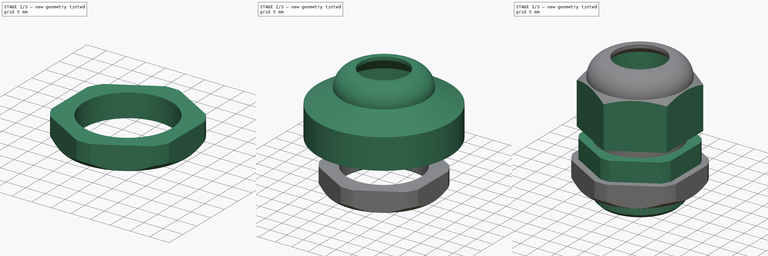
[diagram: build sequence overview — one tinted view per stage of 3, left to right]
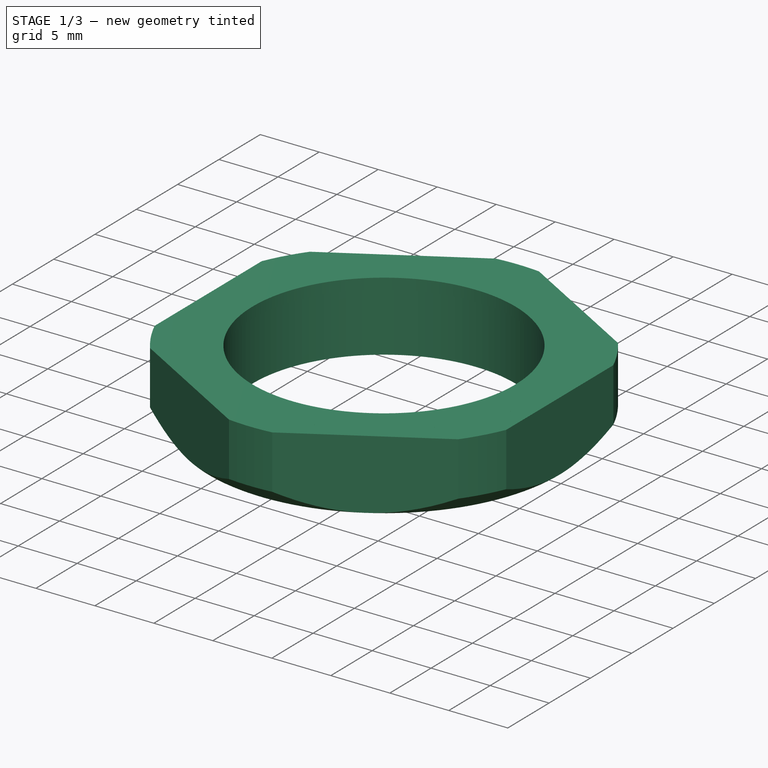
[diagram: stage 1 of 3 — iso view after this stage's code; geometry added in this stage tinted green]
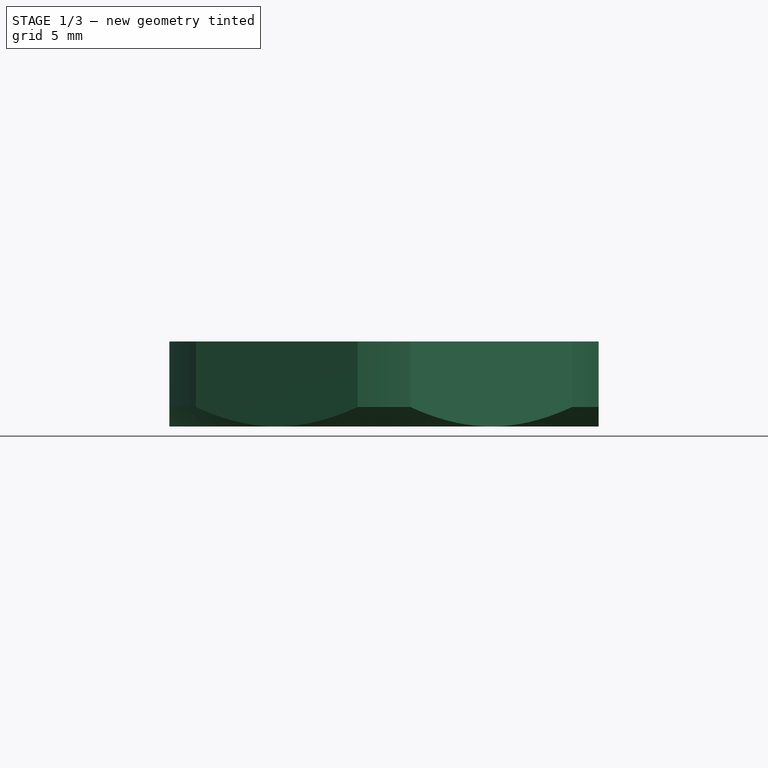
[diagram: stage 1 of 3 — front view after this stage's code; geometry added in this stage tinted green]
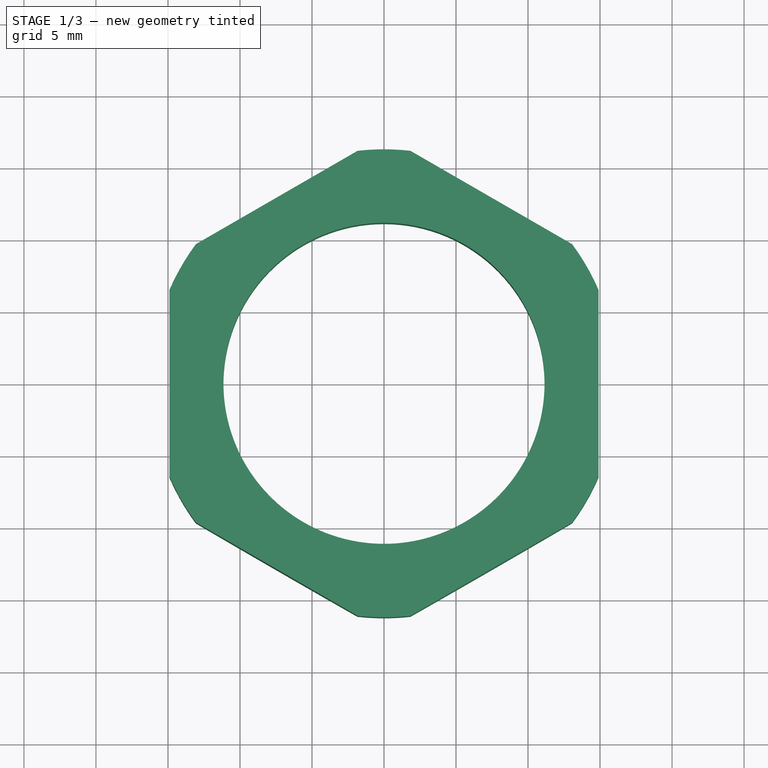
[diagram: stage 1 of 3 — top view after this stage's code; geometry added in this stage tinted green]
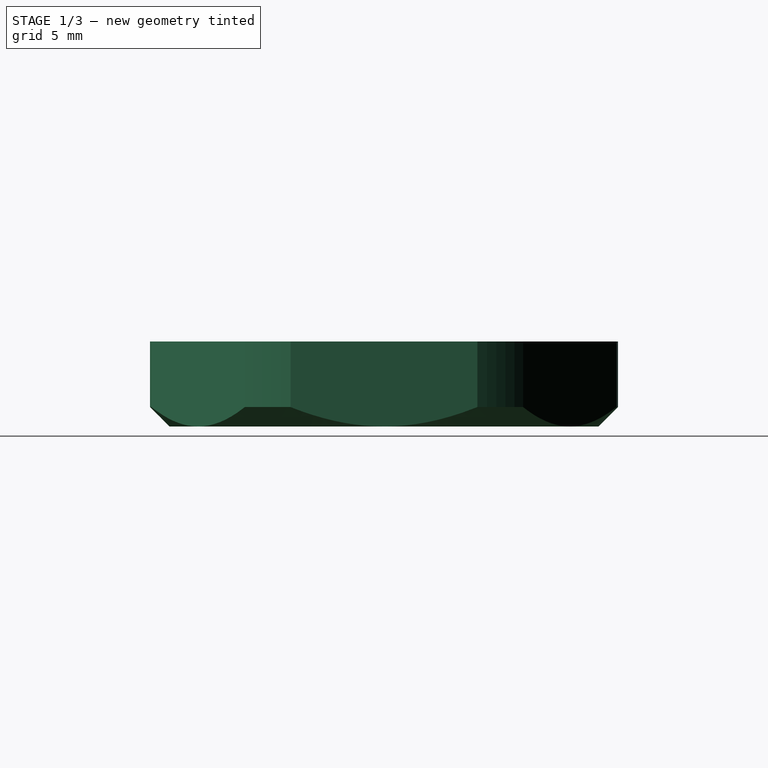
[diagram: stage 1 of 3 — right view after this stage's code; geometry added in this stage tinted green]
FCSTD DOCUMENT  (FreeCAD 0.20R29410 (Git))
Label: PG16 Gland
License: All rights reserved
LicenseURL: http://en.wikipedia.org/wiki/All_rights_reserved
objects: Sketcher::SketchObject×7, PartDesign::Body×4, PartDesign::Revolution×3, PartDesign::Pocket×3, PartDesign::Chamfer×1, PartDesign::Pad×1
note: 27 computed .brp shape members not serialized (recipe doc carries the construction recipe); baked Part::Feature solids carry a one-line shape summary decoded from their .brp

FEATURE [PartDesign::Body] Body001
  Group = -> [Sketch002,Revolution001,Sketch003,Pocket001]
  Origin = -> Origin001
  Placement = pos=(0,0,2) rot=(0,0,1;0rad)
  Tip = -> Pocket001
FEATURE [Sketcher::SketchObject] Sketch004
  FullyConstrained = true
  MapMode = 5
  Placement = pos=(0,0,0) rot=(0.57735,0.57735,0.57735;2.0944rad)
  Support = -> [YZ_Plane002]
  sketch-geometry (5):
    g0: LineSegment StartX=11.15 StartY=0 StartZ=0 EndX=11.15 EndY=-5.9 EndZ=0
    g1: LineSegment StartX=11.15 StartY=-5.9 StartZ=0 EndX=14.9 EndY=-5.9 EndZ=0
    g2: LineSegment StartX=14.9 StartY=-5.9 StartZ=0 EndX=16.25 EndY=-4.55 EndZ=0
    g3: LineSegment StartX=16.25 StartY=-4.55 StartZ=0 EndX=16.25 EndY=0 EndZ=0
    g4: LineSegment StartX=16.25 StartY=0 StartZ=0 EndX=11.15 EndY=0 EndZ=0
  constraints (15):
    c: Vertical(g0)
    c: Coincident(g2,g3)
    c: Vertical(g3)
    c: Coincident(g3,g4)
    c: Coincident(g4,g0)
    c: Horizontal(g4)
    c: DistanceY(g0,g0) = 5.9
    c: DistanceX(g-1,g0) = 11.15
    c: DistanceX(g-1,g3) = 16.25
    c: Angle(g2,g-1) = 2.35619
    c: DistanceX(g-1,g1) = 14.9
    c: Coincident(g0,g1)
    c: Coincident(g1,g2)
    c: Horizontal(g1)
    c: PointOnObject(g3,g-1)
FEATURE [PartDesign::Revolution] Revolution002
  Angle = 360
  Axis = (-2e-16,3e-16,1)
  Base = (0,0,0)
  Placement = pos=(0,0,0) rot=(0.57735,0.57735,0.57735;2.0944rad)
  Profile = -> Sketch004
  ReferenceAxis = -> Sketch004 [V_Axis]
  Reversed = true
FEATURE [Sketcher::SketchObject] Sketch005
  FullyConstrained = false
  MapMode = 5
  Placement = pos=(3.3e-15,-2.3e-15,-5.9) rot=(0.707107,0.707107,0;3.14159rad)
  Support = -> [Revolution002]
  sketch-geometry (8):
    g0: LineSegment StartX=17.205 StartY=0 StartZ=0 EndX=8.60252 EndY=14.9 EndZ=0
    g1: LineSegment StartX=8.60252 StartY=14.9 StartZ=0 EndX=-8.60252 EndY=14.9 EndZ=0
    g2: LineSegment StartX=-8.60252 StartY=14.9 StartZ=0 EndX=-17.205 EndY=1.0587e-12 EndZ=0
    g3: LineSegment StartX=-17.205 StartY=1.0587e-12 StartZ=0 EndX=-8.60252 EndY=-14.9 EndZ=0
    g4: LineSegment StartX=-8.60252 StartY=-14.9 StartZ=0 EndX=8.60252 EndY=-14.9 EndZ=0
    g5: LineSegment StartX=8.60252 StartY=-14.9 StartZ=0 EndX=17.205 EndY=0 EndZ=0
    g6: Circle CenterX=0 CenterY=0 CenterZ=0 NormalX=0 NormalY=0 NormalZ=1 AngleXU=0 Radius=17.205
    g7: Circle CenterX=0 CenterY=0 CenterZ=0 NormalX=0 NormalY=0 NormalZ=1 AngleXU=0 Radius=18.7292
  constraints (17):
    c: Coincident(g0,g1)
    c: Coincident(g1,g2)
    c: Coincident(g2,g3)
    c: Coincident(g3,g4)
    c: Coincident(g4,g5)
    c: Coincident(g5,g0)
    c: Equal(g0, g1-g5) x5
    c: PointOnObject(g0,g6)
    c: PointOnObject(g1,g6)
    c: PointOnObject(g2,g6)
    c: PointOnObject(g3,g6)
    c: PointOnObject(g4,g6)
    c: PointOnObject(g5,g6)
    c: Coincident(g6,g-1)
    c: PointOnObject(g5,g-1)
    c: DistanceY(g4,g0) = 29.8
    c: Coincident(g7,g6)
FEATURE [PartDesign::Pocket] Pocket002
  BaseFeature = -> Revolution002
  Direction = (-6e-16,4e-16,1)
  Length = 5
  Length2 = 5
  Placement = pos=(0,0,0) rot=(0.57735,0.57735,0.57735;2.0944rad)
  Profile = -> Sketch005
  ReferenceAxis = -> Sketch005 [N_Axis]
  Type = 1
FEATURE [PartDesign::Body] Body002
  Group = -> [Sketch004,Revolution002,Sketch005,Pocket002,Chamfer]
  Origin = -> Origin002
  Placement = pos=(0,0,-2.9) rot=(0,0,1;0rad)
  Tip = -> Chamfer
FEATURE [Sketcher::SketchObject] Sketch006
  FullyConstrained = true
  MapMode = 5
  Support = -> [XY_Plane003]
  sketch-geometry (2):
    g0: Circle CenterX=0 CenterY=0 CenterZ=0 NormalX=0 NormalY=0 NormalZ=1 AngleXU=0 Radius=13.9
    g1: Circle CenterX=0 CenterY=0 CenterZ=0 NormalX=0 NormalY=0 NormalZ=1 AngleXU=0 Radius=11.15
  constraints (4):
    c: Coincident(g0,g-1)
    c: Diameter(g0) = 27.8
    c: Coincident(g1,g0)
    c: Diameter(g1) = 22.3
FEATURE [PartDesign::Pad] Pad
  Direction = (0,0,1)
  Length = 0.9
  Length2 = 10
  Profile = -> Sketch006
  ReferenceAxis = -> Sketch006 [N_Axis]
  Reversed = true
  Type = 0
FEATURE [PartDesign::Body] Body003
  Group = -> [Sketch006,Pad]
  Origin = -> Origin003
  Tip = -> Pad
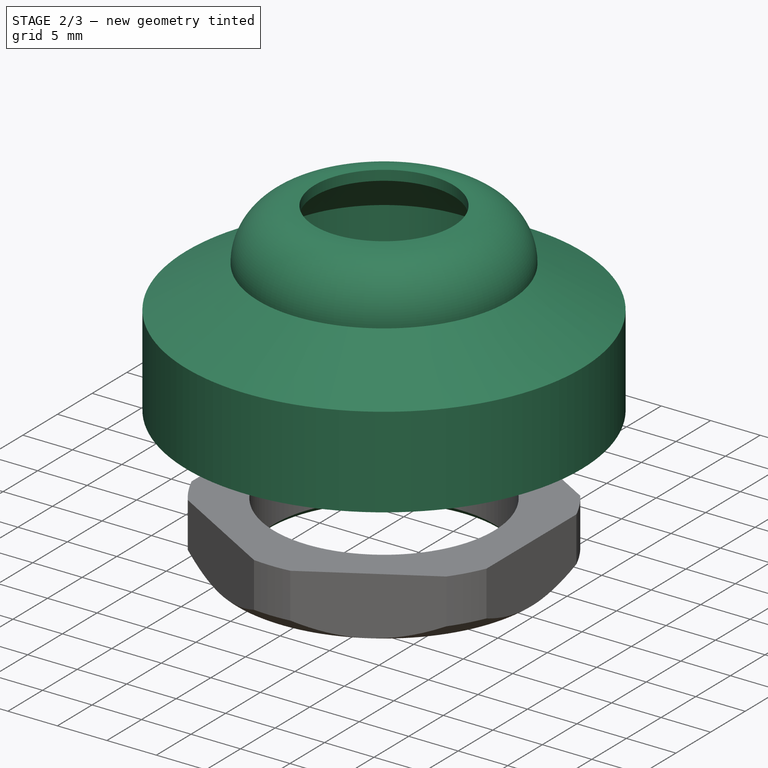
[diagram: stage 2 of 3 — iso view after this stage's code; geometry added in this stage tinted green]
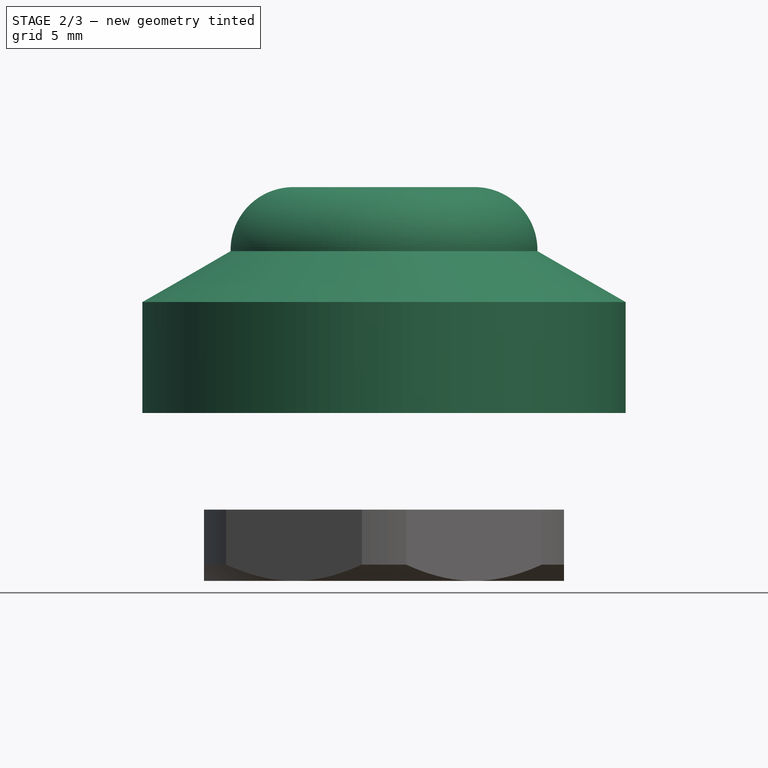
[diagram: stage 2 of 3 — front view after this stage's code; geometry added in this stage tinted green]
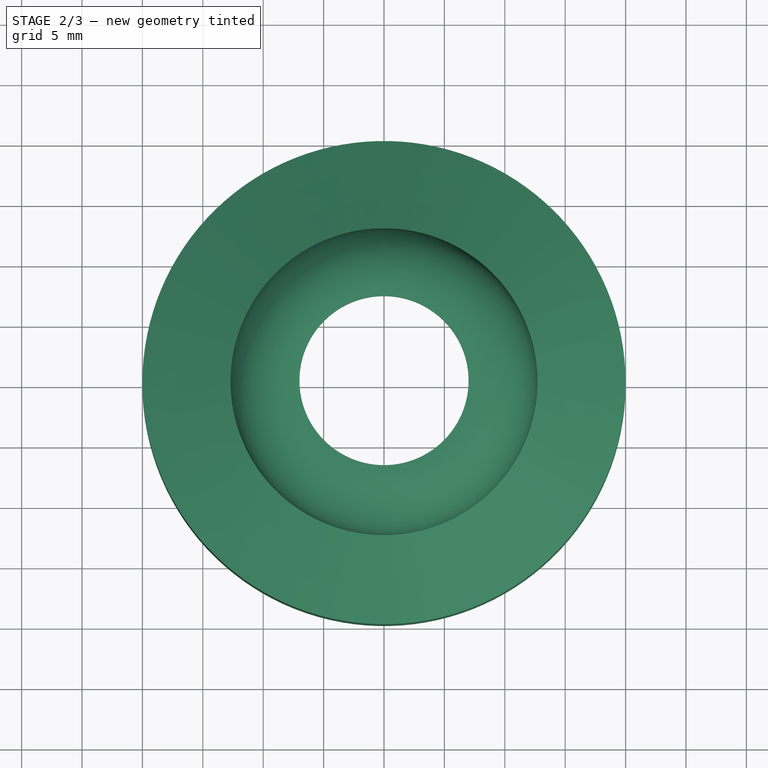
[diagram: stage 2 of 3 — top view after this stage's code; geometry added in this stage tinted green]
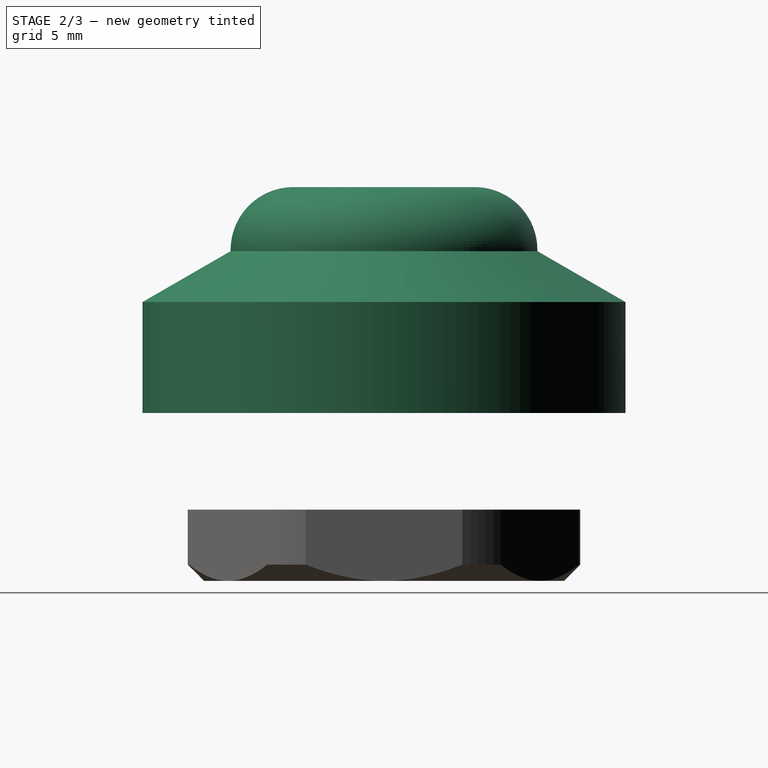
[diagram: stage 2 of 3 — right view after this stage's code; geometry added in this stage tinted green]
FEATURE [PartDesign::Body] Body
  Group = -> [Sketch,Revolution,Sketch001,Pocket]
  Origin = -> Origin
  Tip = -> Pocket
FEATURE [Sketcher::SketchObject] Sketch002
  FullyConstrained = true
  MapMode = 5
  Placement = pos=(0,0,0) rot=(1,0,0;1.5708rad)
  Support = -> [XZ_Plane001]
  sketch-geometry (9):
    g0: LineSegment StartX=11.15 StartY=8 StartZ=0 EndX=20 EndY=8 EndZ=0
    g1: LineSegment StartX=20 StartY=8 StartZ=0 EndX=20 EndY=17.1853 EndZ=0
    g2: LineSegment StartX=20 StartY=17.1853 StartZ=0 EndX=12.7 EndY=21.4 EndZ=0
    g3: LineSegment StartX=11.15 StartY=8 StartZ=0 EndX=11.15 EndY=21.55 EndZ=0
    g4: LineSegment StartX=11.15 StartY=21.55 StartZ=0 EndX=7 EndY=25.7 EndZ=0
    g5: LineSegment StartX=7 StartY=25.7 StartZ=0 EndX=7 EndY=26.7 EndZ=0
    g6: LineSegment StartX=7 StartY=26.7 StartZ=0 EndX=7.5 EndY=26.7 EndZ=0
    g7: LineSegment StartX=12.7 StartY=21.4 StartZ=0 EndX=12.7 EndY=21.5 EndZ=0
    g8: ArcOfCircle CenterX=7.5 CenterY=21.5 CenterZ=0 NormalX=0 NormalY=0 NormalZ=1 AngleXU=0 Radius=5.2 StartAngle=3e-16 EndAngle=1.5708
  constraints (26):
    c: Horizontal(g0)
    c: Coincident(g0,g1)
    c: Vertical(g1)
    c: Coincident(g1,g2)
    c: Coincident(g0,g3)
    c: Vertical(g3)
    c: Coincident(g3,g4)
    c: Coincident(g4,g5)
    c: Coincident(g5,g6)
    c: Horizontal(g6)
    c: Vertical(g5)
    c: Angle(g4,g3) = 2.35619
    c: Coincident(g7,g2)
    c: Vertical(g7)
    c: Tangent(g6,g8) = 1.5708
    c: Tangent(g7,g8) = -1.5708
    c: DistanceY(g-1,g0) = 8
    c: DistanceX(g-1,g7) = 12.7
    c: DistanceX(g-1,g0) = 20
    c: Angle(g2,g1) = 2.0944
    c: DistanceX(g-1,g0) = 11.15
    c: DistanceY(g0,g5) = 18.7
    c: DistanceY(g0,g2) = 13.4
    c: DistanceX(g6,g6) = 0.5
    c: DistanceX(g-1,g5) = 7
    c: DistanceY(g5,g5) = 1
FEATURE [PartDesign::Revolution] Revolution001
  AllowMultiFace = false
  Angle = 360
  Axis = (0,-2e-16,1)
  Base = (0,0,0)
  Placement = pos=(0,0,0) rot=(1,0,0;1.5708rad)
  Profile = -> Sketch002
  ReferenceAxis = -> Sketch002 [V_Axis]
  Reversed = true
FEATURE [PartDesign::Chamfer] Chamfer
  Angle = 45
  Base = -> Pocket002 [Edge2,Edge1]
  BaseFeature = -> Pocket002
  ChamferType = 0
  FlipDirection = false
  Placement = pos=(0,0,0) rot=(0.57735,0.57735,0.57735;2.0944rad)
  Size = 0.5
  Size2 = 1
  SupportTransform = false
  UseAllEdges = false
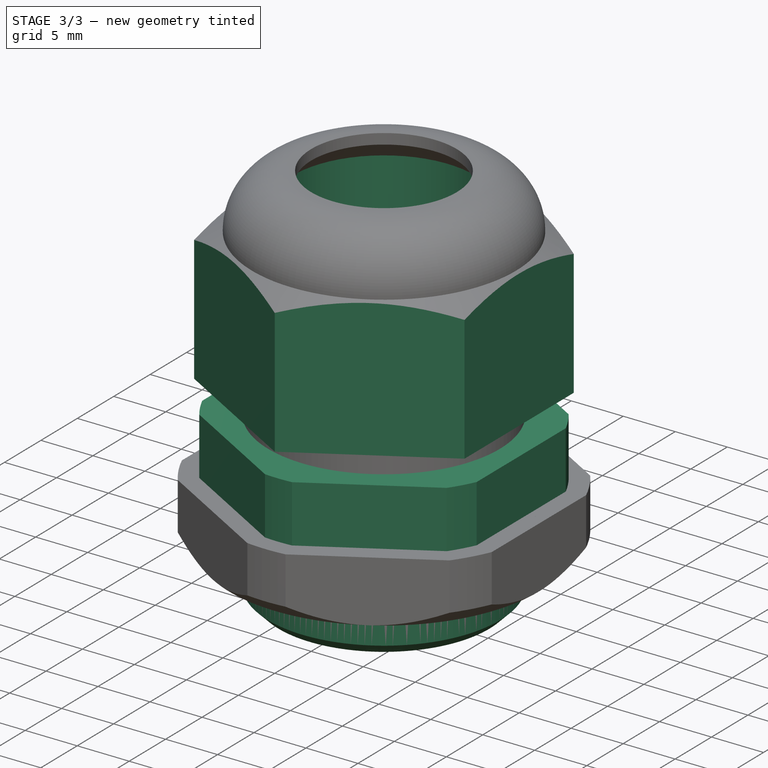
[diagram: stage 3 of 3 — iso view after this stage's code; geometry added in this stage tinted green]
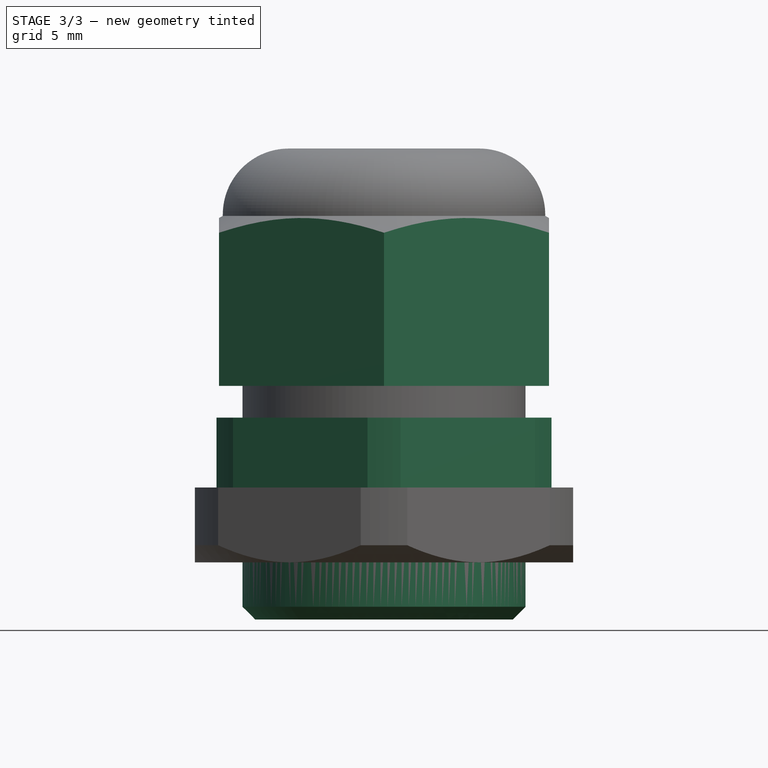
[diagram: stage 3 of 3 — front view after this stage's code; geometry added in this stage tinted green]
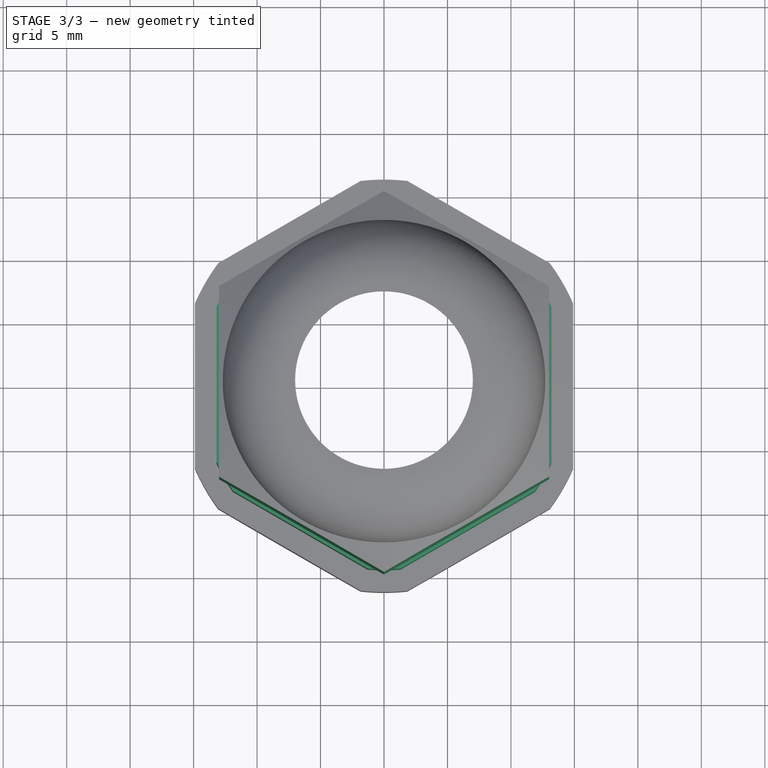
[diagram: stage 3 of 3 — top view after this stage's code; geometry added in this stage tinted green]
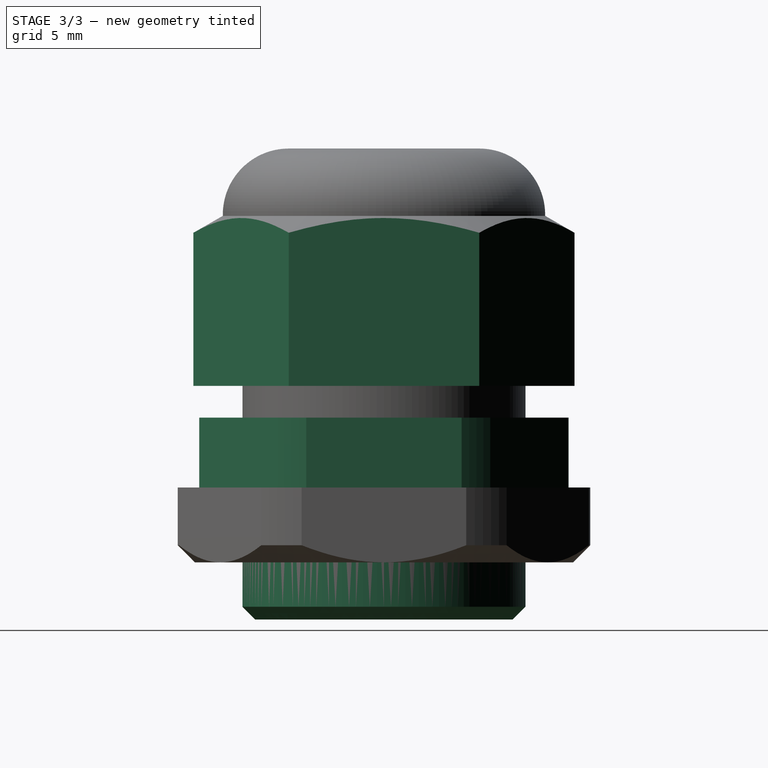
[diagram: stage 3 of 3 — right view after this stage's code; geometry added in this stage tinted green]
FEATURE [Sketcher::SketchObject] Sketch
  FullyConstrained = true
  MapMode = 5
  Placement = pos=(0,0,0) rot=(1,0,0;1.5708rad)
  Support = -> [XZ_Plane]
  sketch-geometry (10):
    g0: LineSegment StartX=8.75 StartY=-10.4 StartZ=0 EndX=8.75 EndY=25.3 EndZ=0
    g1: LineSegment StartX=11.15 StartY=19.3 StartZ=0 EndX=11.15 EndY=5.5 EndZ=0
    g2: LineSegment StartX=11.15 StartY=5.5 StartZ=0 EndX=14.55 EndY=5.5 EndZ=0
    g3: LineSegment StartX=14.55 StartY=5.5 StartZ=0 EndX=14.55 EndY=0 EndZ=0
    g4: LineSegment StartX=14.55 StartY=0 StartZ=0 EndX=11.15 EndY=0 EndZ=0
    g5: LineSegment StartX=11.15 StartY=0 StartZ=0 EndX=11.15 EndY=-9.4 EndZ=0
    g6: LineSegment StartX=11.15 StartY=-9.4 StartZ=0 EndX=10.15 EndY=-10.4 EndZ=0
    g7: LineSegment StartX=10.15 StartY=-10.4 StartZ=0 EndX=8.75 EndY=-10.4 EndZ=0
    g8: LineSegment StartX=11.15 StartY=19.3 StartZ=0 EndX=9.75 EndY=25.3 EndZ=0
    g9: LineSegment StartX=9.75 StartY=25.3 StartZ=0 EndX=8.75 EndY=25.3 EndZ=0
  constraints (30):
    c: Vertical(g0)
    c: Vertical(g1)
    c: Coincident(g1,g2)
    c: Horizontal(g2)
    c: Coincident(g2,g3)
    c: Vertical(g3)
    c: Coincident(g3,g4)
    c: Horizontal(g4)
    c: Coincident(g4,g5)
    c: Vertical(g5)
    c: Coincident(g5,g6)
    c: Coincident(g6,g7)
    c: Coincident(g7,g0)
    c: Horizontal(g7)
    c: Coincident(g8,g9)
    c: Coincident(g9,g0)
    c: Horizontal(g9)
    c: DistanceY(g0,g-1) = 10.4
    c: DistanceY(g6,g5) = 1
    c: Angle(g6,g7) = 2.35619
    c: DistanceX(g-1,g5) = 11.15
    c: DistanceX(g-1,g0) = 8.75
    c: PointOnObject(g4,g-1)
    c: DistanceY(g3,g3) = 5.5
    c: DistanceX(g-1,g3) = 14.55
    c: DistanceX(g-1,g1) = 11.15
    c: Coincident(g8,g1)
    c: DistanceY(g1,g8) = 6
    c: DistanceX(g0,g8) = 1
    c: DistanceY(g2,g8) = 19.8
FEATURE [PartDesign::Revolution] Revolution
  AllowMultiFace = false
  Angle = 360
  Axis = (0,-2e-16,1)
  Base = (0,0,0)
  Placement = pos=(0,0,0) rot=(1,0,0;1.5708rad)
  Profile = -> Sketch
  ReferenceAxis = -> Sketch [V_Axis]
  Reversed = true
FEATURE [Sketcher::SketchObject] Sketch001
  FullyConstrained = true
  MapMode = 5
  Placement = pos=(0,-1.2e-15,5.5) rot=(0,0,1;3.14159rad)
  Support = -> [Revolution]
  sketch-geometry (8):
    g0: LineSegment StartX=0 StartY=15.242 StartZ=0 EndX=-13.2 EndY=7.62102 EndZ=0
    g1: LineSegment StartX=-13.2 StartY=7.62102 StartZ=0 EndX=-13.2 EndY=-7.62102 EndZ=0
    g2: LineSegment StartX=-13.2 StartY=-7.62102 StartZ=0 EndX=-4.97e-14 EndY=-15.242 EndZ=0
    g3: LineSegment StartX=-4.97e-14 StartY=-15.242 StartZ=0 EndX=13.2 EndY=-7.62102 EndZ=0
    g4: LineSegment StartX=13.2 StartY=-7.62102 StartZ=0 EndX=13.2 EndY=7.62102 EndZ=0
    g5: LineSegment StartX=13.2 StartY=7.62102 StartZ=0 EndX=0 EndY=15.242 EndZ=0
    g6: Circle CenterX=0 CenterY=0 CenterZ=0 NormalX=0 NormalY=0 NormalZ=1 AngleXU=0 Radius=15.242
    g7: Circle CenterX=0 CenterY=0 CenterZ=0 NormalX=0 NormalY=0 NormalZ=1 AngleXU=0 Radius=20
  constraints (18):
    c: Coincident(g0,g1)
    c: Coincident(g1,g2)
    c: Coincident(g2,g3)
    c: Coincident(g3,g4)
    c: Coincident(g4,g5)
    c: Coincident(g5,g0)
    c: Equal(g0, g1-g5) x5
    c: PointOnObject(g0,g6)
    c: PointOnObject(g1,g6)
    c: PointOnObject(g2,g6)
    c: PointOnObject(g3,g6)
    c: PointOnObject(g4,g6)
    c: PointOnObject(g5,g6)
    c: Coincident(g6,g-1)
    c: PointOnObject(g5,g-2)
    c: DistanceX(g0,g4) = 26.4
    c: Coincident(g7,g-1)
    c: Radius(g7) = 20
FEATURE [PartDesign::Pocket] Pocket
  AllowMultiFace = false
  BaseFeature = -> Revolution
  Direction = (0,2e-16,-1)
  Length = 5
  Length2 = 100
  Placement = pos=(0,0,0) rot=(1,0,0;1.5708rad)
  Profile = -> Sketch001
  Type = 1
FEATURE [Sketcher::SketchObject] Sketch003
  FullyConstrained = true
  MapMode = 5
  Placement = pos=(0,-1.8e-15,8) rot=(1,0,0;3.14159rad)
  Support = -> [Revolution001]
  sketch-geometry (8):
    g0: LineSegment StartX=0 StartY=15.0111 StartZ=0 EndX=-13 EndY=7.50555 EndZ=0
    g1: LineSegment StartX=-13 StartY=7.50555 StartZ=0 EndX=-13 EndY=-7.50555 EndZ=0
    g2: LineSegment StartX=-13 StartY=-7.50555 StartZ=0 EndX=0 EndY=-15.0111 EndZ=0
    g3: LineSegment StartX=6e-16 StartY=-15.0111 StartZ=0 EndX=13 EndY=-7.50555 EndZ=0
    g4: LineSegment StartX=13 StartY=-7.50555 StartZ=0 EndX=13 EndY=7.50555 EndZ=0
    g5: LineSegment StartX=13 StartY=7.50555 StartZ=0 EndX=0 EndY=15.0111 EndZ=0
    g6: Circle CenterX=0 CenterY=0 CenterZ=0 NormalX=0 NormalY=0 NormalZ=1 AngleXU=0 Radius=15.0111
    g7: Circle CenterX=0 CenterY=0 CenterZ=0 NormalX=0 NormalY=0 NormalZ=1 AngleXU=0 Radius=20
  constraints (18):
    c: Coincident(g0,g1)
    c: Coincident(g1,g2)
    c: Coincident(g2,g3)
    c: Coincident(g3,g4)
    c: Coincident(g4,g5)
    c: Coincident(g5,g0)
    c: Equal(g0, g1-g5) x5
    c: PointOnObject(g0,g6)
    c: PointOnObject(g1,g6)
    c: PointOnObject(g2,g6)
    c: PointOnObject(g3,g6)
    c: PointOnObject(g4,g6)
    c: PointOnObject(g5,g6)
    c: PointOnObject(g5,g-2)
    c: DistanceX(g0,g4) = 26
    c: Coincident(g6,g-1)
    c: Coincident(g7,g-1)
    c: Radius(g7) = 20
FEATURE [PartDesign::Pocket] Pocket001
  AllowMultiFace = false
  BaseFeature = -> Revolution001
  Direction = (0,-2e-16,1)
  Length = 5
  Length2 = 100
  Placement = pos=(0,0,0) rot=(1,0,0;1.5708rad)
  Profile = -> Sketch003
  Type = 1
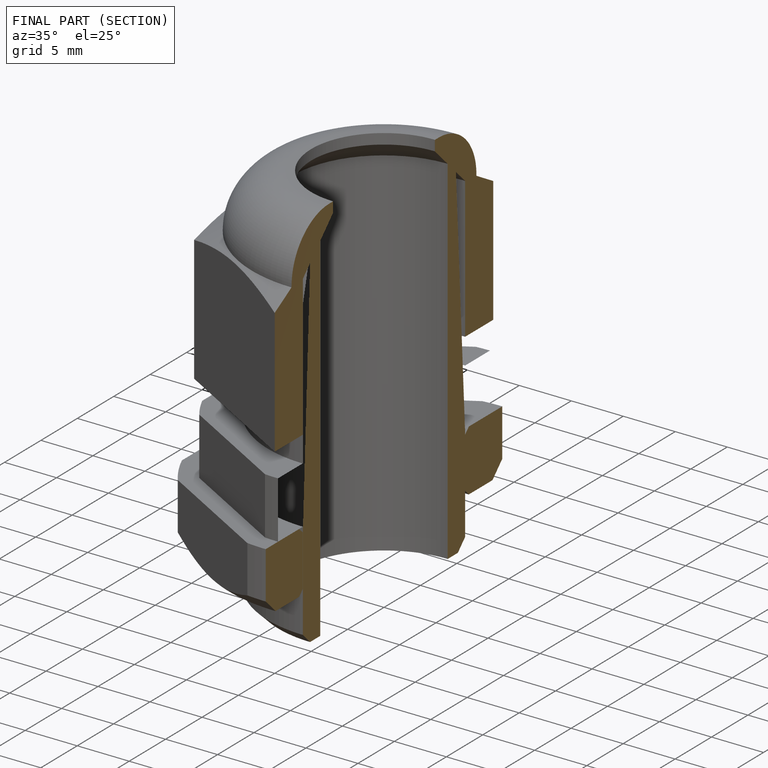
[diagram: finished part — half-section view (interior)]
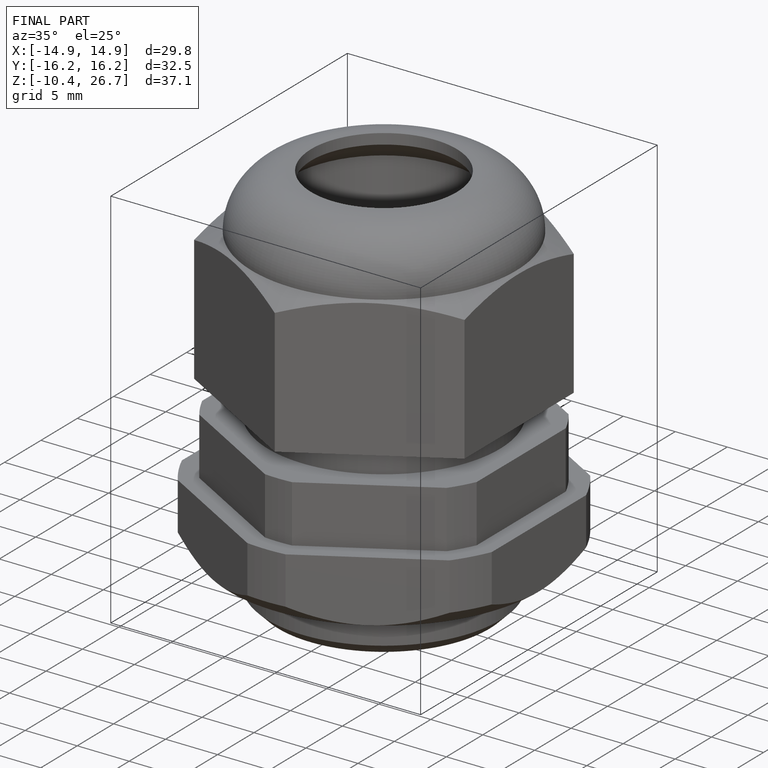
[diagram: finished part — iso view with bounding-box wireframe]
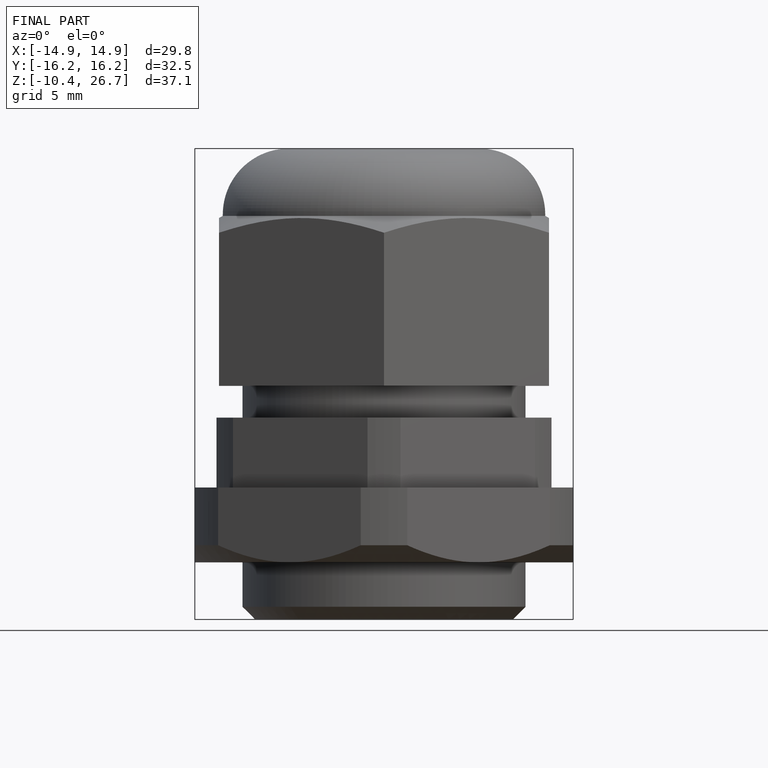
[diagram: finished part — front view with bounding-box wireframe]
